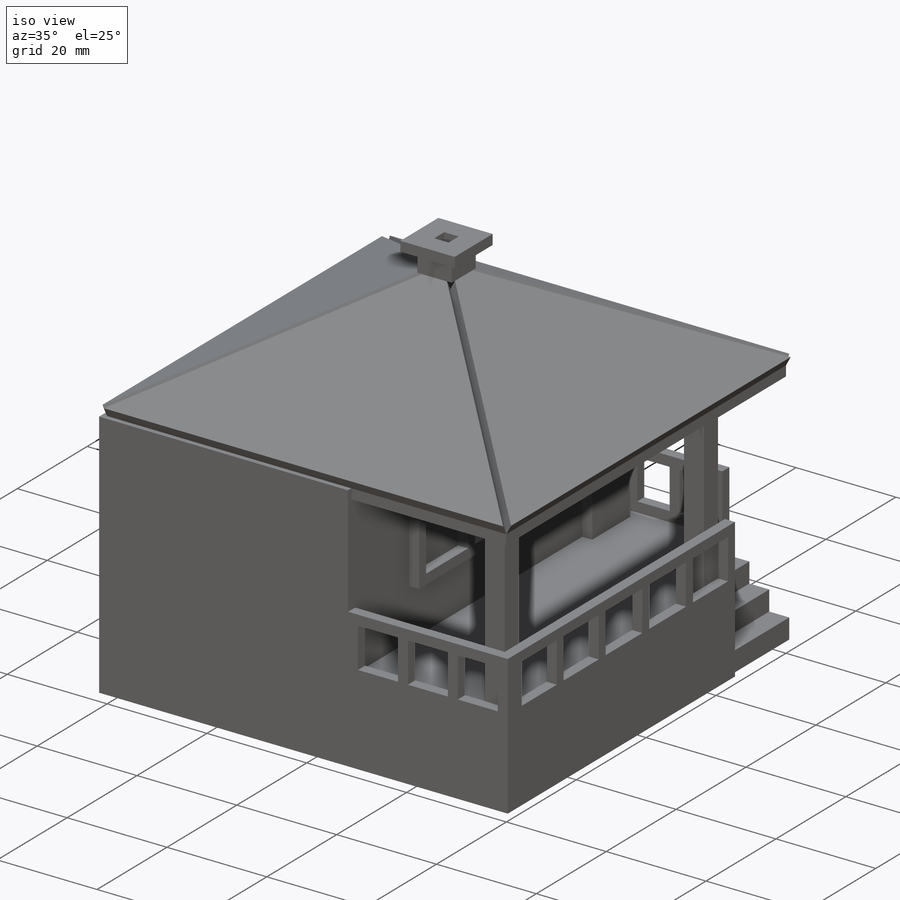
[diagram: iso view]
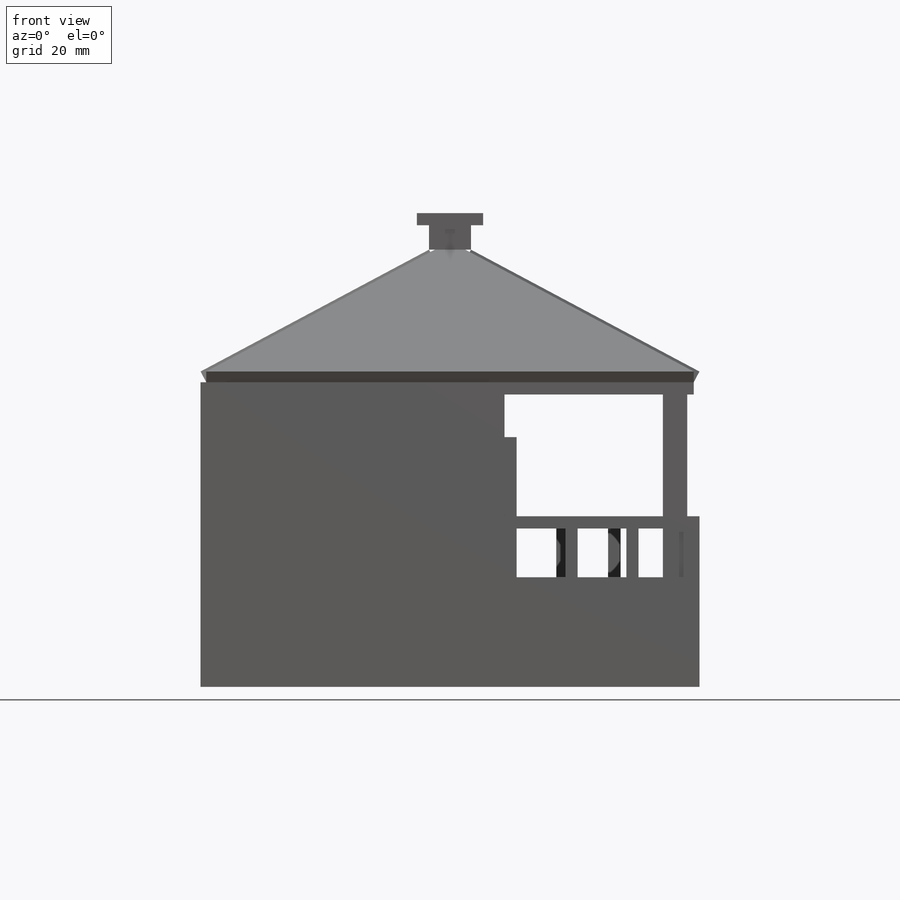
[diagram: front view]
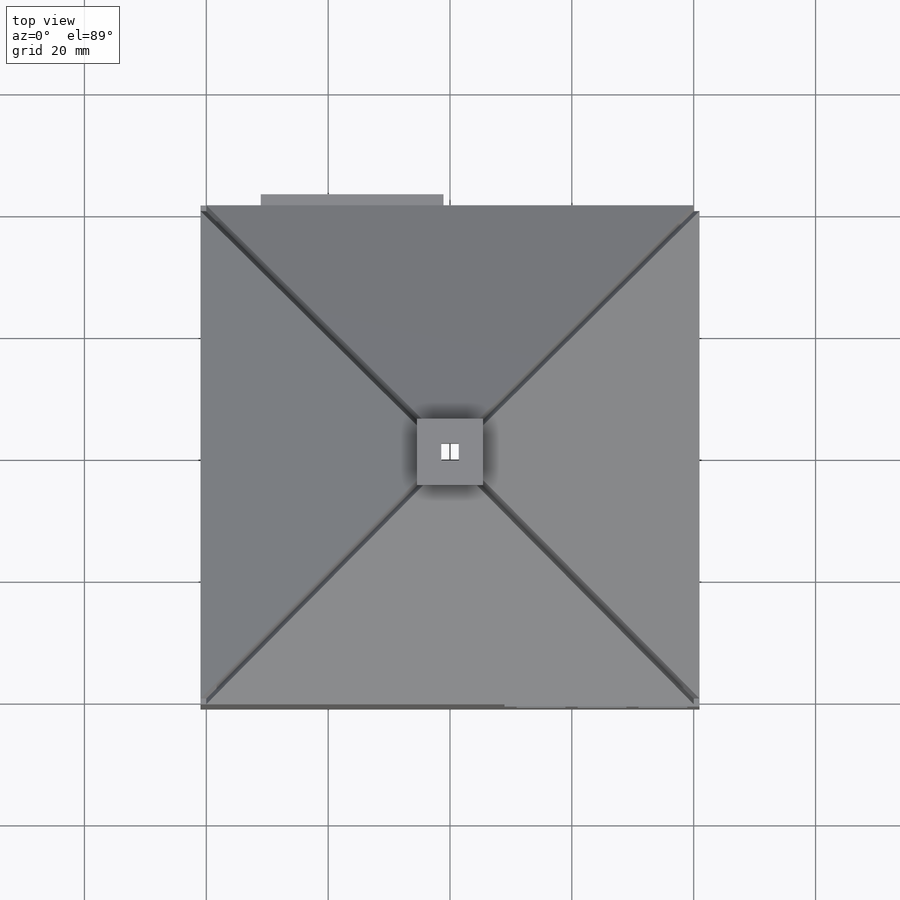
[diagram: top view]
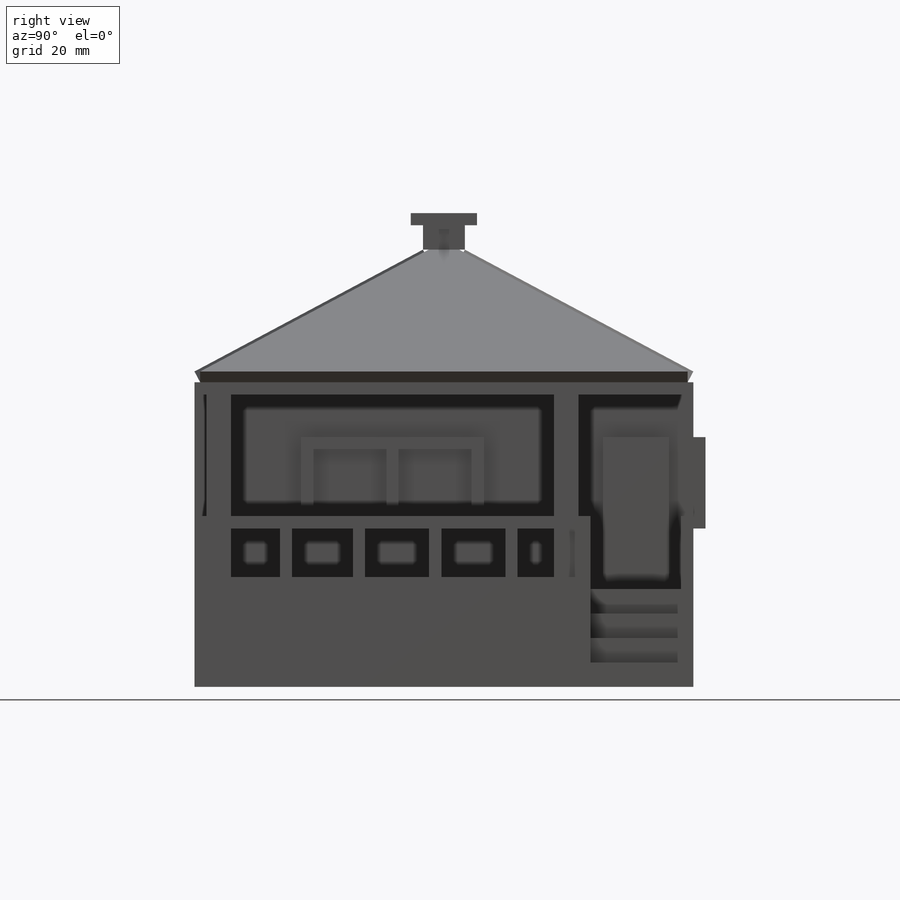
[diagram: right view]
SOLIDWORKS PART (.sldprt)
format: sldprt  version: not decoded by parser v0  size: 691,200 bytes
history: native  units: mm
features: sketch x23, extrude x21, plane x7, material x1, pattern_circular x1 (+15 scaffold rows collapsed)
feature tree (68):
  scaffold x15  (default folders/planes/origin — collapsed)
  material  "Plain Carbon Steel"
  sketch  "Sketch1"  dims[D1=80.0mm D2=80.0mm]
  plane  "Plane1"  Offset=20mm
  sketch  "Sketch2"  dims[D1=5.0mm D2=5.0mm]
  plane  "Plane2"
  sketch  "Sketch3"
  extrude  "Extrude2"  Depth=2mm
  plane  "Plane3"
  pattern_circular  "CirPattern7"  Count=4 Angle=360deg
  plane  "Plane4"
  sketch  "Sketch4"  dims[D1=50.0mm]
  extrude  "Extrude3"  Depth=2mm
  plane  "Plane5"
  sketch  "Sketch5"  dims[D1=2.0mm D2=30.0mm D3=16.0mm]
  extrude  "Extrude4"  Depth=2mm
  sketch  "Sketch6"  dims[D1=4.0mm D2=4.0mm D3=4.0mm D4=4.0mm D5=4.0mm D6=4.0mm]
  extrude  "Extrude5"  Depth=2mm
  sketch  "Sketch7"  dims[D1=65.0mm]
  extrude  "Extrude6"  Depth=2mm
  sketch  "Sketch8"  dims[D1=2.0mm D2=2.0mm]
  extrude  "Extrude7"  Depth=2mm
  sketch  "Sketch9"
  extrude  "Extrude8"  Depth=2mm
  sketch  "Sketch11"
  extrude  "Extrude9"  Depth=2mm
  sketch  "Sketch12"
  extrude  "Extrude10"  [1 undecoded]
  sketch  "Sketch13"  dims[D1=2.0mm]
  extrude  "Extrude11"  Depth=2mm
  plane  "Plane6"
  sketch  "Sketch16"
  extrude  "Extrude13"  Depth=2mm
  sketch  "Sketch17"  dims[D1=4.0mm D2=4.0mm]
  extrude  "Extrude14"  [1 undecoded]
  sketch  "Sketch18"  dims[D1=4.0mm D2=4.0mm]
  extrude  "Extrude16"  [1 undecoded]
  sketch  "Sketch20"  dims[D1=2.0mm D2=2.0mm D3=25.0mm D4=2.0mm]
  extrude  "Extrude17"  Depth=2mm
  sketch  "Sketch21"  dims[D1=30.0mm D2=15.0mm D3=2.0mm D4=1.0mm D5=1.0mm]
  extrude  "Extrude18"  Depth=2mm
  plane  "Plane7"
  sketch  "Sketch22"  dims[D1=2.0mm]
  extrude  "Extrude19"  Depth=6mm
  sketch  "Sketch23"  dims[D1=0.0mm D2=2.0mm]
  extrude  "Extrude20"  Depth=2mm
  sketch  "Sketch24"  dims[c1.D2=12.0mm c1.D3=2.0mm c1.D4=2.0mm c1.D5=8.0mm c1.D6=8.0mm c1.D7=~11.287647mm c1.D1=2.0mm c2.D2=1.0mm c2.D3=1.0mm c2.D4=1.0mm c2.D5=1.0mm]
  extrude  "Extrude21"  Depth=2mm
  sketch  "Sketch25"  dims[c1.D2=2.0mm c1.D3=2.0mm c1.D4=2.0mm c1.D5=2.0mm c1.D6=10.0mm c1.D7=10.0mm c1.D8=10.5mm c1.D9=10.5mm c1.D10=11.0mm c1.D1=2.0mm c2.D2=1.0mm c2.D3=1.0mm c2.D4=1.0mm c2.D5=1.0mm c2.D6=1.0mm c2.D7=1.0mm c2.D8=1.0mm c2.D9=1.0mm]
  extrude  "Extrude22"  Depth=2mm
  sketch  "Sketch26"  dims[D1=30.0mm D2=15.0mm D3=2.0mm D4=2.0mm D5=2.0mm D6=2.0mm D7=10.0mm]
  extrude  "Extrude23"  Depth=2mm
  sketch  "Sketch27"  dims[c1.D1=12.0mm c1.D2=2.0mm c1.D3=2.0mm c1.D4=6.5mm c1.D5=6.5mm c2.D2=2.0mm c2.D3=2.0mm c2.D6=2.0mm c2.D7=2.0mm]
  extrude  "Extrude24"  Depth=2mm
decode coverage: 37 of 45 modeling features carry decoded parameters
note: ~ marks probable driven/reference dimensions
note: 3 parameter values undecoded
summary: no parameter record found for 3 features
note: suppression state not decoded; provenance and decode notes live in map.json
